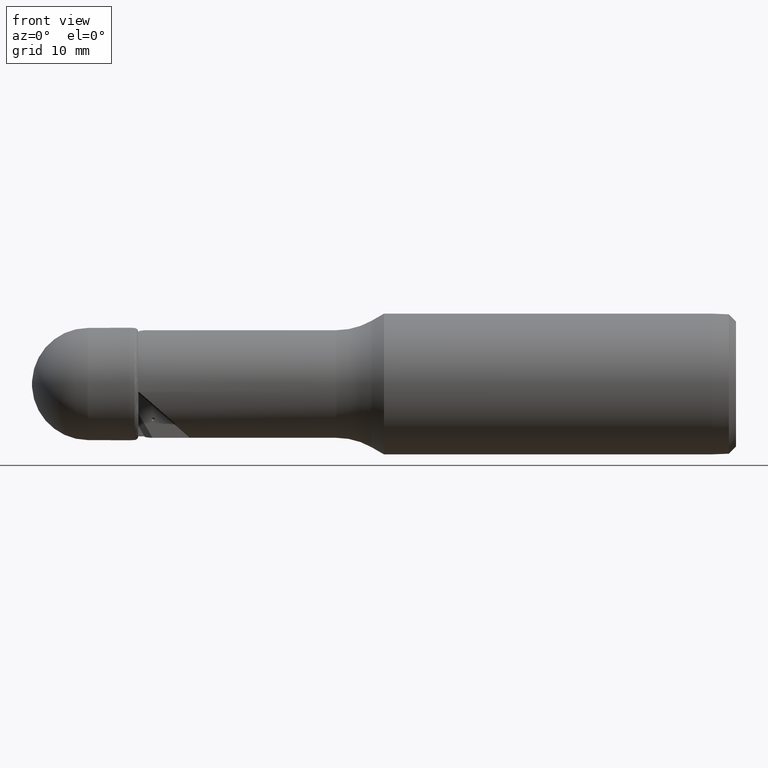
[diagram: clean part render]
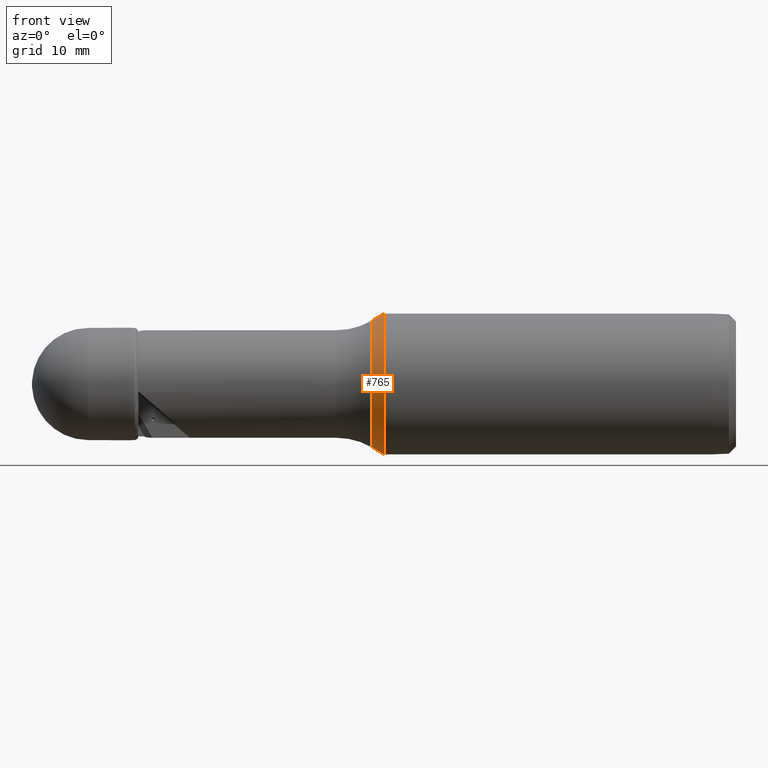
[diagram: same view with one face highlighted and labeled with its STEP entity id]
A machine part, front view. The second image highlights one B-rep face of the part: STEP entity #765.
In plain terms, the highlighted conical surface has half-angle 30 deg.
Its self-contained STEP definition (entity closure, byte-faithful):
#90 = EDGE_CURVE ( 'NONE', #3119, #661, #193, .T. ) ;
#156 = DIRECTION ( 'NONE',  ( 1.000000000000000000, 0.0000000000000000000, 0.0000000000000000000 ) ) ;
#193 = LINE ( 'NONE', #210, #2313 ) ;
#210 = CARTESIAN_POINT ( 'NONE',  ( 50.31688218180731553, 1.224646799147353256E-15, 10.00000000000000000 ) ) ;
#302 = ORIENTED_EDGE ( 'NONE', *, *, #1216, .T. ) ;
#329 = DIRECTION ( 'NONE',  ( 0.8660254037844377084, 0.0000000000000000000, -0.5000000000000017764 ) ) ;
#411 = CARTESIAN_POINT ( 'NONE',  ( 50.31688218180731553, 1.224646799147353256E-15, -10.00000000000000000 ) ) ;
#513 = AXIS2_PLACEMENT_3D ( 'NONE', #3063, #534, #2297 ) ;
#534 = DIRECTION ( 'NONE',  ( -1.000000000000000000, 0.0000000000000000000, 0.0000000000000000000 ) ) ;
#661 = VERTEX_POINT ( 'NONE', #780 ) ;
#765 = ADVANCED_FACE ( 'NONE', ( #2395 ), #1477, .T. ) ;
#775 = VECTOR ( 'NONE', #329, 999.9999999999998863 ) ;
#780 = CARTESIAN_POINT ( 'NONE',  ( 50.31688218180731553, 0.0000000000000000000, 10.00000000000000000 ) ) ;
#781 = VERTEX_POINT ( 'NONE', #411 ) ;
#932 = CARTESIAN_POINT ( 'NONE',  ( 50.31688218180731553, 0.0000000000000000000, 5.421010862427522170E-17 ) ) ;
#973 = ORIENTED_EDGE ( 'NONE', *, *, #2048, .T. ) ;
#1167 = ORIENTED_EDGE ( 'NONE', *, *, #2987, .F. ) ;
#1216 = EDGE_CURVE ( 'NONE', #781, #661, #1929, .T. ) ;
#1224 = DIRECTION ( 'NONE',  ( 0.8660254037844377084, 6.123233995736788223E-17, 0.5000000000000017764 ) ) ;
#1477 = CONICAL_SURFACE ( 'NONE', #1903, 10.00000000000000000, 0.5235987755983009251 ) ;
#1488 = EDGE_LOOP ( 'NONE', ( #2746, #1167, #973, #302 ) ) ;
#1513 = DIRECTION ( 'NONE',  ( 0.0000000000000000000, 0.0000000000000000000, 1.000000000000000000 ) ) ;
#1681 = CARTESIAN_POINT ( 'NONE',  ( 48.55316572022800159, 0.0000000000000000000, -8.981717826133007065 ) ) ;
#1811 = LINE ( 'NONE', #3098, #775 ) ;
#1872 = VERTEX_POINT ( 'NONE', #1681 ) ;
#1892 = CARTESIAN_POINT ( 'NONE',  ( 48.55316572022800159, 0.0000000000000000000, 0.0000000000000000000 ) ) ;
#1903 = AXIS2_PLACEMENT_3D ( 'NONE', #932, #156, #1934 ) ;
#1929 = CIRCLE ( 'NONE', #513, 10.00000000000000000 ) ;
#1934 = DIRECTION ( 'NONE',  ( 0.0000000000000000000, 0.0000000000000000000, -1.000000000000000000 ) ) ;
#2048 = EDGE_CURVE ( 'NONE', #1872, #781, #1811, .T. ) ;
#2084 = CIRCLE ( 'NONE', #2468, 8.981717826133007065 ) ;
#2297 = DIRECTION ( 'NONE',  ( 0.0000000000000000000, 0.0000000000000000000, 1.000000000000000000 ) ) ;
#2313 = VECTOR ( 'NONE', #1224, 999.9999999999998863 ) ;
#2316 = CARTESIAN_POINT ( 'NONE',  ( 48.55316572022800159, 1.162294998904602032E-15, 8.981717826133007065 ) ) ;
#2395 = FACE_OUTER_BOUND ( 'NONE', #1488, .T. ) ;
#2468 = AXIS2_PLACEMENT_3D ( 'NONE', #1892, #3046, #1513 ) ;
#2746 = ORIENTED_EDGE ( 'NONE', *, *, #90, .F. ) ;
#2987 = EDGE_CURVE ( 'NONE', #1872, #3119, #2084, .T. ) ;
#3046 = DIRECTION ( 'NONE',  ( -1.000000000000000000, 0.0000000000000000000, 0.0000000000000000000 ) ) ;
#3063 = CARTESIAN_POINT ( 'NONE',  ( 50.31688218180731553, 0.0000000000000000000, 5.421010862427522170E-17 ) ) ;
#3098 = CARTESIAN_POINT ( 'NONE',  ( 50.31688218180731553, 0.0000000000000000000, -10.00000000000000000 ) ) ;
#3119 = VERTEX_POINT ( 'NONE', #2316 ) ;